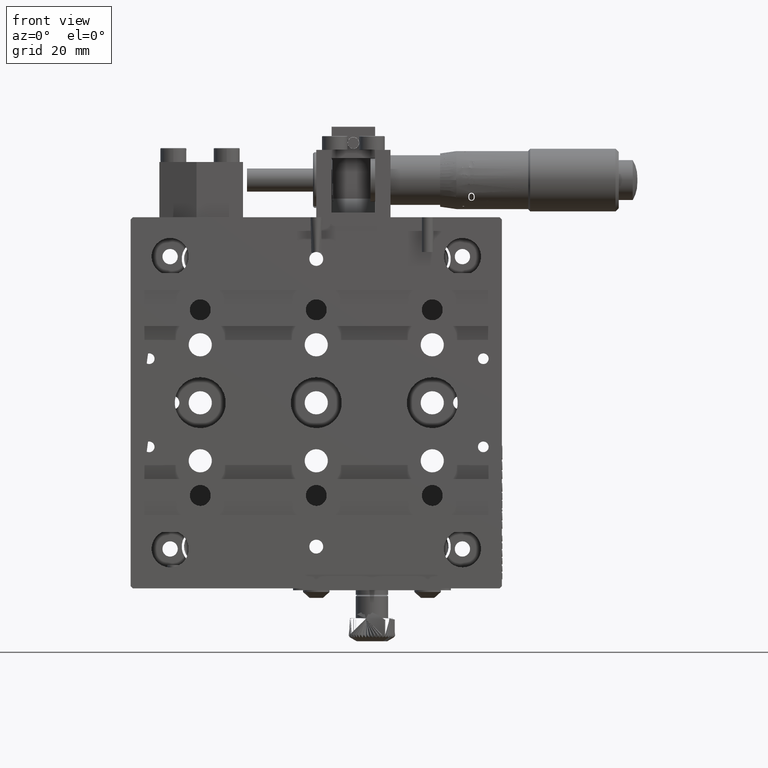
[diagram: clean part render]
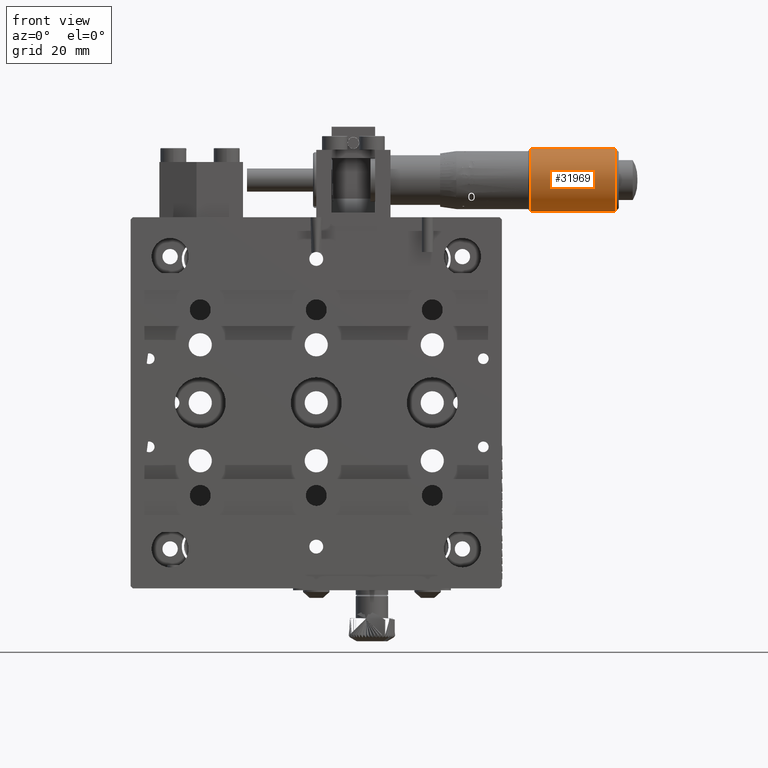
[diagram: same view with one face highlighted and labeled with its STEP entity id]
A machine part, front view. The second image highlights one B-rep face of the part: STEP entity #31969.
In plain terms, the highlighted cylindrical surface (edge-blend (fillet) strip) has radius 6.75 mm, axis along (1, 0, 0).
Its self-contained STEP definition (entity closure, byte-faithful):
#734 = FACE_OUTER_BOUND ( 'NONE', #16015, .T. ) ;
#854 = LINE ( 'NONE', #54716, #25747 ) ;
#2091 = DIRECTION ( 'NONE',  ( 1.000000000000000000, 0.0000000000000000000, 0.0000000000000000000 ) ) ;
#2367 = CIRCLE ( 'NONE', #19330, 6.749999999999999100 ) ;
#9840 = CARTESIAN_POINT ( 'NONE',  ( 69.20000000000003100, 14.49999999999999800, 54.74999999999998600 ) ) ;
#10970 = CIRCLE ( 'NONE', #35971, 6.749999999999999100 ) ;
#15472 = DIRECTION ( 'NONE',  ( 1.000000000000000000, 0.0000000000000000000, 0.0000000000000000000 ) ) ;
#16015 = EDGE_LOOP ( 'NONE', ( #46130, #44892, #56410, #50138 ) ) ;
#17233 = CARTESIAN_POINT ( 'NONE',  ( 46.10000000000000100, 14.49999999999999800, 41.24999999999998600 ) ) ;
#17971 = DIRECTION ( 'NONE',  ( -1.000000000000000000, -0.0000000000000000000, -0.0000000000000000000 ) ) ;
#19330 = AXIS2_PLACEMENT_3D ( 'NONE', #31850, #2091, #36830 ) ;
#25619 = CYLINDRICAL_SURFACE ( 'NONE', #37648, 6.749999999999999100 ) ;
#25747 = VECTOR ( 'NONE', #15472, 1000.000000000000000 ) ;
#28205 = CARTESIAN_POINT ( 'NONE',  ( 64.50000000000000000, 14.49999999999999800, 41.24999999999998600 ) ) ;
#29595 = CARTESIAN_POINT ( 'NONE',  ( 64.50000000000000000, 14.49999999999999800, 54.74999999999998600 ) ) ;
#31850 = CARTESIAN_POINT ( 'NONE',  ( 46.10000000000000100, 14.49999999999999800, 47.99999999999998600 ) ) ;
#31969 = ADVANCED_FACE ( 'NONE', ( #734 ), #25619, .T. ) ;
#35971 = AXIS2_PLACEMENT_3D ( 'NONE', #47449, #17971, #52276 ) ;
#36830 = DIRECTION ( 'NONE',  ( 0.0000000000000000000, 0.0000000000000000000, -1.000000000000000000 ) ) ;
#37648 = AXIS2_PLACEMENT_3D ( 'NONE', #56418, #56497, #56436 ) ;
#43993 = CARTESIAN_POINT ( 'NONE',  ( 46.10000000000000100, 14.49999999999999800, 54.74999999999998600 ) ) ;
#44426 = DIRECTION ( 'NONE',  ( 1.000000000000000000, 0.0000000000000000000, 0.0000000000000000000 ) ) ;
#44892 = ORIENTED_EDGE ( 'NONE', *, *, #49019, .T. ) ;
#46130 = ORIENTED_EDGE ( 'NONE', *, *, #47466, .F. ) ;
#47449 = CARTESIAN_POINT ( 'NONE',  ( 64.50000000000000000, 14.49999999999999800, 47.99999999999998600 ) ) ;
#47466 = EDGE_CURVE ( 'NONE', #50882, #48051, #53354, .T. ) ;
#47833 = VERTEX_POINT ( 'NONE', #28205 ) ;
#48051 = VERTEX_POINT ( 'NONE', #29595 ) ;
#48199 = EDGE_CURVE ( 'NONE', #53909, #47833, #854, .T. ) ;
#49019 = EDGE_CURVE ( 'NONE', #50882, #53909, #2367, .T. ) ;
#49113 = EDGE_CURVE ( 'NONE', #47833, #48051, #10970, .T. ) ;
#50138 = ORIENTED_EDGE ( 'NONE', *, *, #49113, .T. ) ;
#50882 = VERTEX_POINT ( 'NONE', #43993 ) ;
#52276 = DIRECTION ( 'NONE',  ( 0.0000000000000000000, 0.0000000000000000000, -1.000000000000000000 ) ) ;
#53354 = LINE ( 'NONE', #9840, #56353 ) ;
#53909 = VERTEX_POINT ( 'NONE', #17233 ) ;
#54716 = CARTESIAN_POINT ( 'NONE',  ( 69.20000000000003100, 14.49999999999999800, 41.24999999999998600 ) ) ;
#56353 = VECTOR ( 'NONE', #44426, 1000.000000000000000 ) ;
#56410 = ORIENTED_EDGE ( 'NONE', *, *, #48199, .T. ) ;
#56418 = CARTESIAN_POINT ( 'NONE',  ( 69.20000000000003100, 14.49999999999999800, 47.99999999999998600 ) ) ;
#56436 = DIRECTION ( 'NONE',  ( 0.0000000000000000000, 0.0000000000000000000, -1.000000000000000000 ) ) ;
#56497 = DIRECTION ( 'NONE',  ( 1.000000000000000000, 0.0000000000000000000, 0.0000000000000000000 ) ) ;